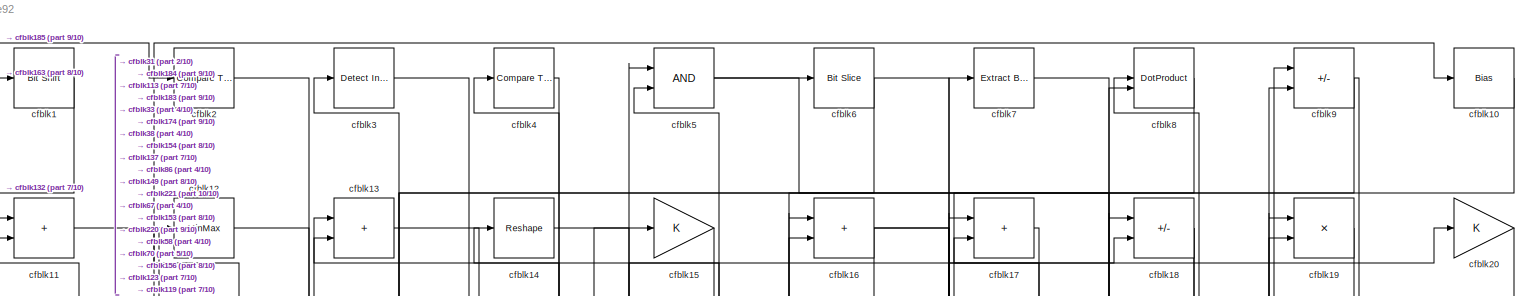
[diagram: root canvas - part 1/10, full width, top band]
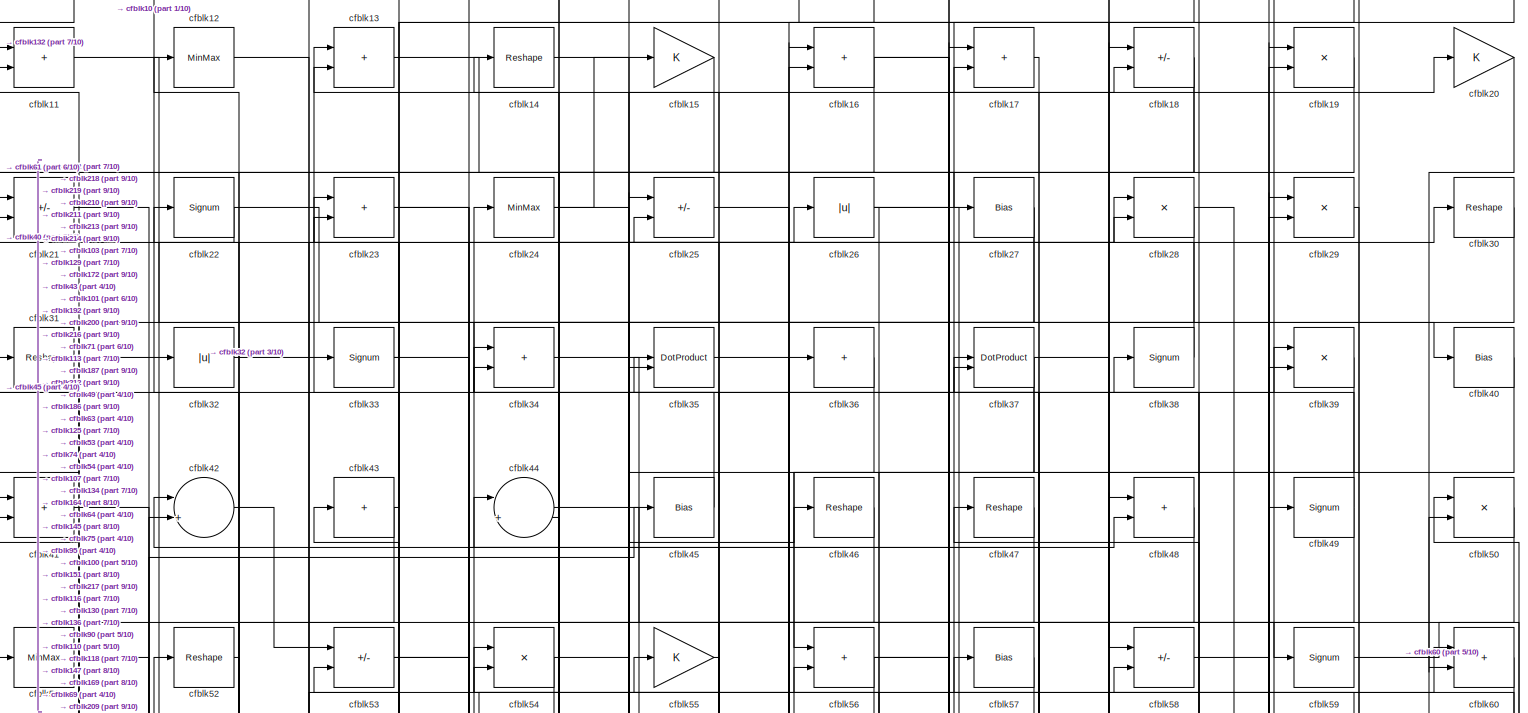
[diagram: root canvas - part 2/10, full width, top band]
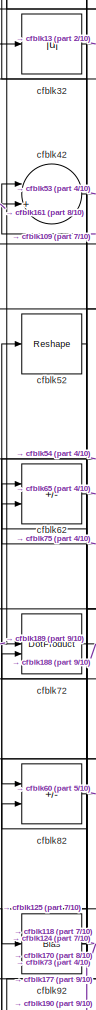
[diagram: root canvas - part 3/10, top left region]
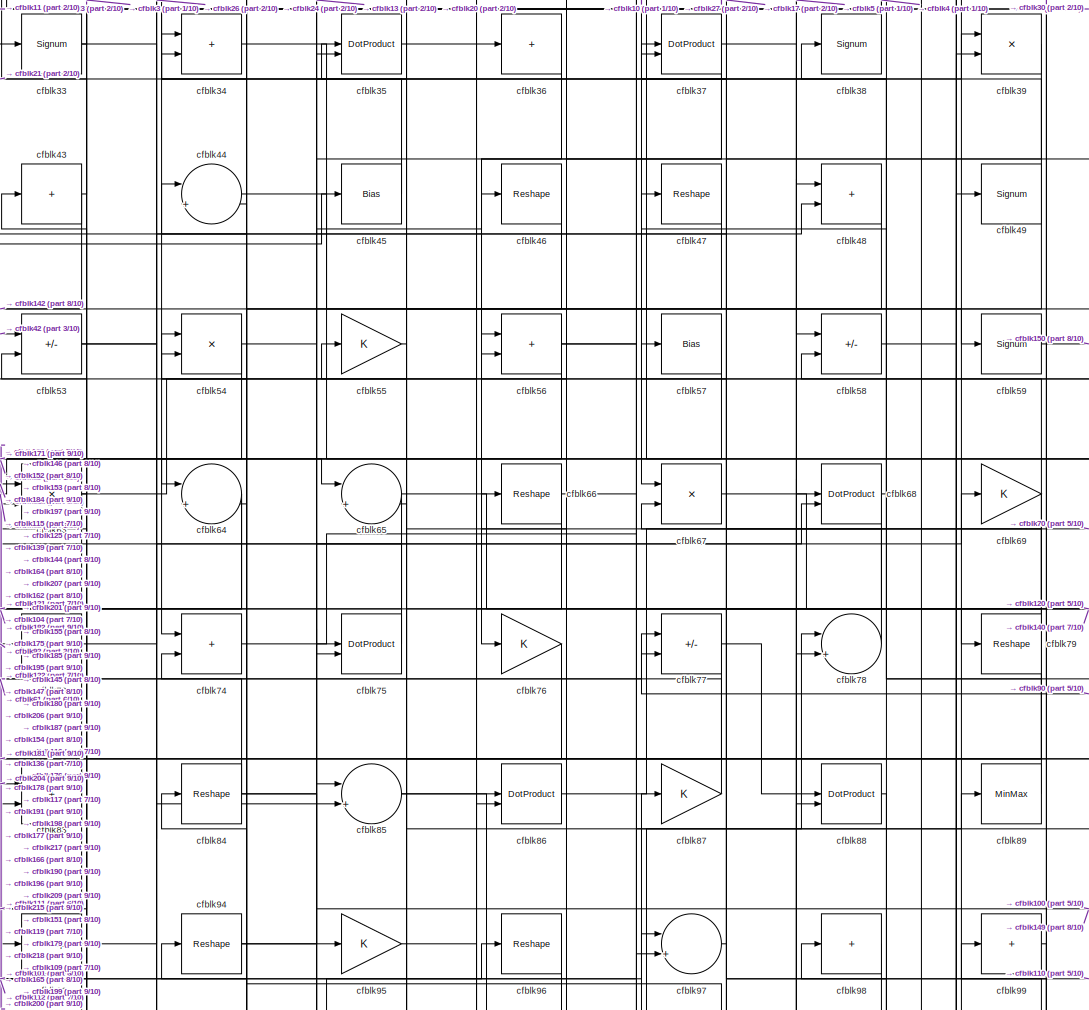
[diagram: root canvas - part 4/10, top center region]
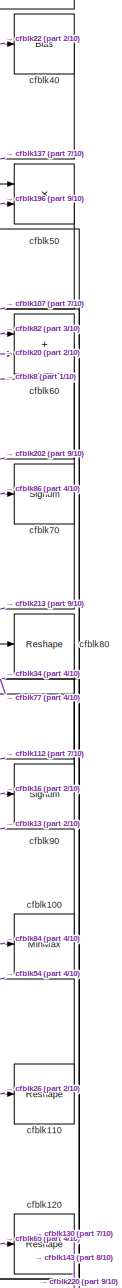
[diagram: root canvas - part 5/10, top right region]
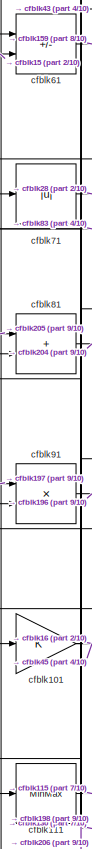
[diagram: root canvas - part 6/10, middle left region]
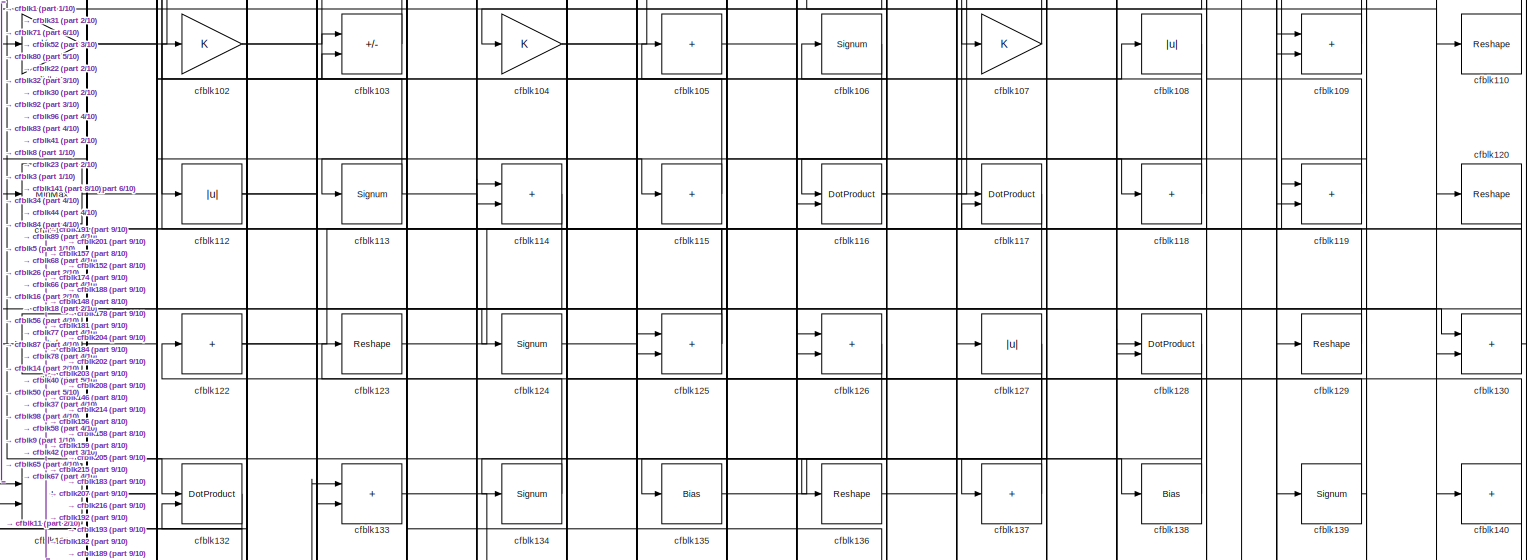
[diagram: root canvas - part 7/10, full width, middle band]
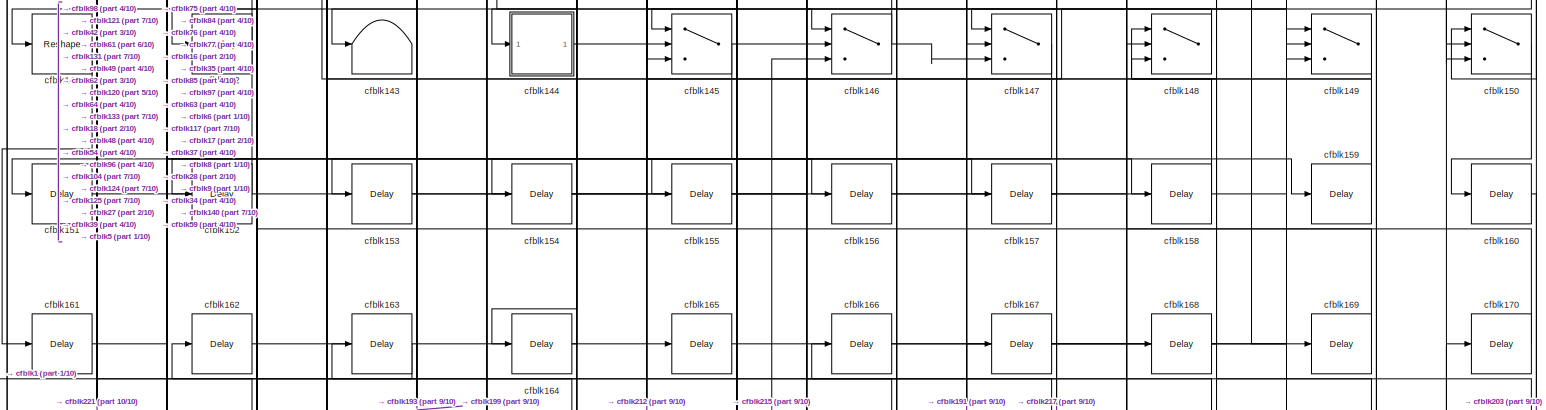
[diagram: root canvas - part 8/10, full width, bottom band]
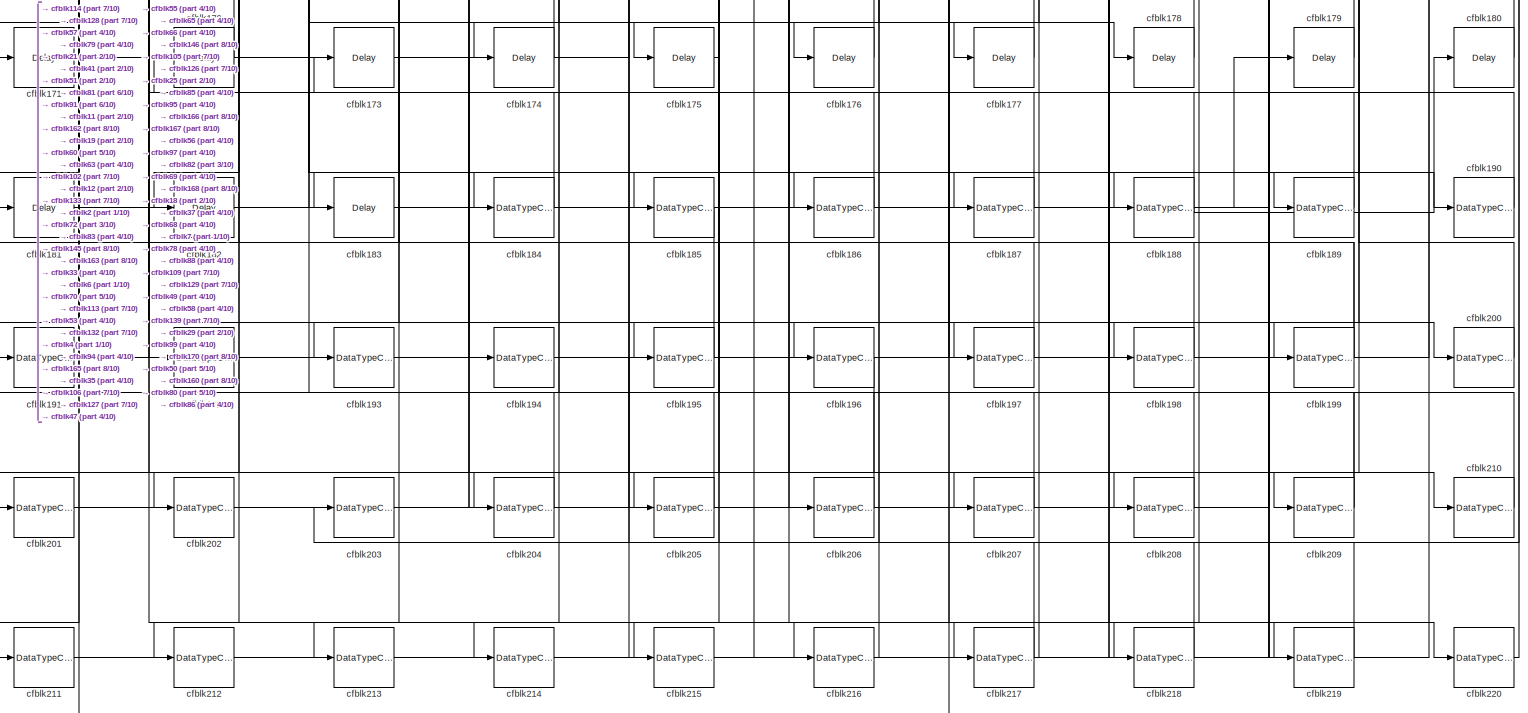
[diagram: root canvas - part 9/10, full width, bottom band]
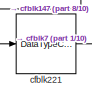
[diagram: root canvas - part 10/10, bottom left region]
MODEL slx_e676f4b62e92
KIND model
CONFIG AbsTol = auto
CONFIG EnableMultiTasking = off
CONFIG FixedStep = auto
CONFIG MaxStep = auto
CONFIG MinStep = auto
CONFIG RelTol = 1e-3
CONFIG SampleTimeConstraint = Unconstrained
CONFIG SolverName = VariableStepAuto
CONFIG StartTime = 0.0
CONFIG StopTime = 10.0
BLOCK [Reference] cfblk1  REF=hdlsllib/Logic and Bit
Operations/Bit Shift
  SourceBlock = hdlsllib/Logic and Bit\nOperations/Bit Shift
  SourceType = Bit Shift
BLOCK [Bias] cfblk10
  Bias = 0.0
  SaturateOnIntegerOverflow = off
BLOCK [MinMax] cfblk100
BLOCK [Gain] cfblk101
BLOCK [Gain] cfblk102
BLOCK [Sum] cfblk103
  IconShape = rectangular
  Inputs = +-
BLOCK [Gain] cfblk104
BLOCK [Sum] cfblk105
  IconShape = rectangular
  Inputs = +
BLOCK [Signum] cfblk106
BLOCK [Gain] cfblk107
BLOCK [Abs] cfblk108
  SaturateOnIntegerOverflow = off
BLOCK [Sum] cfblk109
  IconShape = rectangular
BLOCK [Sum] cfblk11
  IconShape = rectangular
BLOCK [Reshape] cfblk110
BLOCK [MinMax] cfblk111
BLOCK [Abs] cfblk112
  SaturateOnIntegerOverflow = off
BLOCK [Signum] cfblk113
BLOCK [Sum] cfblk114
  IconShape = rectangular
BLOCK [Sum] cfblk115
  IconShape = rectangular
  Inputs = +
BLOCK [DotProduct] cfblk116
  OutDataTypeStr = Inherit: Inherit via internal rule
BLOCK [DotProduct] cfblk117
  OutDataTypeStr = Inherit: Inherit via internal rule
BLOCK [Sum] cfblk118
  IconShape = rectangular
  Inputs = +
BLOCK [Sum] cfblk119
  IconShape = rectangular
BLOCK [MinMax] cfblk12
BLOCK [Reshape] cfblk120
BLOCK [Abs] cfblk121
  SaturateOnIntegerOverflow = off
BLOCK [Sum] cfblk122
  IconShape = rectangular
  Inputs = +
BLOCK [Reshape] cfblk123
BLOCK [Signum] cfblk124
BLOCK [Sum] cfblk125
  IconShape = rectangular
BLOCK [Sum] cfblk126
  IconShape = rectangular
BLOCK [Abs] cfblk127
  SaturateOnIntegerOverflow = off
BLOCK [DotProduct] cfblk128
  OutDataTypeStr = Inherit: Inherit via internal rule
BLOCK [Reshape] cfblk129
BLOCK [Sum] cfblk13
  IconShape = rectangular
BLOCK [Sum] cfblk130
  IconShape = rectangular
BLOCK [Sum] cfblk131
  IconShape = rectangular
BLOCK [DotProduct] cfblk132
  OutDataTypeStr = Inherit: Inherit via internal rule
BLOCK [Sum] cfblk133
  IconShape = rectangular
BLOCK [Signum] cfblk134
BLOCK [Bias] cfblk135
  Bias = 0.0
  SaturateOnIntegerOverflow = off
BLOCK [Reshape] cfblk136
BLOCK [Sum] cfblk137
  IconShape = rectangular
  Inputs = +
BLOCK [Bias] cfblk138
  Bias = 0.0
  SaturateOnIntegerOverflow = off
BLOCK [Signum] cfblk139
BLOCK [Reshape] cfblk14
BLOCK [Sum] cfblk140
  IconShape = rectangular
  Inputs = +
BLOCK [Reshape] cfblk141
BLOCK [ToWorkspace] cfblk142
  MaxDataPoints = inf
  SampleTime = -1
  SaveFormat = Timeseries
  VariableName = simout
BLOCK [Terminator] cfblk143
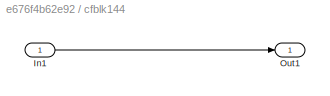
BLOCK [SubSystem] cfblk144
  LibrarySourceBlock = hdlsllib/Ports &\nSubsystems/Subsystem
BLOCK [Inport] cfblk144/In1
BLOCK [Outport] cfblk144/Out1
BLOCK [Switch] cfblk145
  InputSameDT = off
  SaturateOnIntegerOverflow = off
BLOCK [Switch] cfblk146
  InputSameDT = off
  SaturateOnIntegerOverflow = off
BLOCK [Switch] cfblk147
  InputSameDT = off
  SaturateOnIntegerOverflow = off
BLOCK [Switch] cfblk148
  InputSameDT = off
  SaturateOnIntegerOverflow = off
BLOCK [Switch] cfblk149
  InputSameDT = off
  SaturateOnIntegerOverflow = off
BLOCK [Gain] cfblk15
BLOCK [Switch] cfblk150
  InputSameDT = off
  SaturateOnIntegerOverflow = off
BLOCK [Delay] cfblk151
  InputPortMap = u0
  SampleTime = 1
BLOCK [Delay] cfblk152
  InputPortMap = u0
  SampleTime = 1
BLOCK [Delay] cfblk153
  InputPortMap = u0
  SampleTime = 1
BLOCK [Delay] cfblk154
  InputPortMap = u0
  SampleTime = 1
BLOCK [Delay] cfblk155
  InputPortMap = u0
  SampleTime = 1
BLOCK [Delay] cfblk156
  InputPortMap = u0
  SampleTime = 1
BLOCK [Delay] cfblk157
  InputPortMap = u0
  SampleTime = 1
BLOCK [Delay] cfblk158
  InputPortMap = u0
  SampleTime = 1
BLOCK [Delay] cfblk159
  InputPortMap = u0
  SampleTime = 1
BLOCK [Sum] cfblk16
  IconShape = rectangular
BLOCK [Delay] cfblk160
  InputPortMap = u0
  SampleTime = 1
BLOCK [Delay] cfblk161
  InputPortMap = u0
  SampleTime = 1
BLOCK [Delay] cfblk162
  InputPortMap = u0
  SampleTime = 1
BLOCK [Delay] cfblk163
  InputPortMap = u0
  SampleTime = 1
BLOCK [Delay] cfblk164
  InputPortMap = u0
  SampleTime = 1
BLOCK [Delay] cfblk165
  InputPortMap = u0
  SampleTime = 1
BLOCK [Delay] cfblk166
  InputPortMap = u0
  SampleTime = 1
BLOCK [Delay] cfblk167
  InputPortMap = u0
  SampleTime = 1
BLOCK [Delay] cfblk168
  InputPortMap = u0
  SampleTime = 1
BLOCK [Delay] cfblk169
  InputPortMap = u0
  SampleTime = 1
BLOCK [Sum] cfblk17
  IconShape = rectangular
BLOCK [Delay] cfblk170
  InputPortMap = u0
  SampleTime = 1
BLOCK [Delay] cfblk171
  InputPortMap = u0
  SampleTime = 1
BLOCK [Delay] cfblk172
  InputPortMap = u0
  SampleTime = 1
BLOCK [Delay] cfblk173
  InputPortMap = u0
  SampleTime = 1
BLOCK [Delay] cfblk174
  InputPortMap = u0
  SampleTime = 1
BLOCK [Delay] cfblk175
  InputPortMap = u0
  SampleTime = 1
BLOCK [Delay] cfblk176
  InputPortMap = u0
  SampleTime = 1
BLOCK [Delay] cfblk177
  InputPortMap = u0
  SampleTime = 1
BLOCK [Delay] cfblk178
  InputPortMap = u0
  SampleTime = 1
BLOCK [Delay] cfblk179
  InputPortMap = u0
  SampleTime = 1
BLOCK [Sum] cfblk18
  IconShape = rectangular
  Inputs = +-
BLOCK [Delay] cfblk180
  InputPortMap = u0
  SampleTime = 1
BLOCK [Delay] cfblk181
  InputPortMap = u0
  SampleTime = 1
BLOCK [Delay] cfblk182
  InputPortMap = u0
  SampleTime = 1
BLOCK [Delay] cfblk183
  InputPortMap = u0
  SampleTime = 1
BLOCK [DataTypeConversion] cfblk184
  RndMeth = Floor
  SaturateOnIntegerOverflow = off
BLOCK [DataTypeConversion] cfblk185
  OutDataTypeStr = uint8
  RndMeth = Floor
  SaturateOnIntegerOverflow = off
BLOCK [DataTypeConversion] cfblk186
  RndMeth = Floor
  SaturateOnIntegerOverflow = off
BLOCK [DataTypeConversion] cfblk187
  OutDataTypeStr = uint8
  RndMeth = Floor
  SaturateOnIntegerOverflow = off
BLOCK [DataTypeConversion] cfblk188
  RndMeth = Floor
  SaturateOnIntegerOverflow = off
BLOCK [DataTypeConversion] cfblk189
  OutDataTypeStr = uint8
  RndMeth = Floor
  SaturateOnIntegerOverflow = off
BLOCK [Product] cfblk19
  Inputs = */
  RndMeth = Zero
  SaturateOnIntegerOverflow = on
BLOCK [DataTypeConversion] cfblk190
  OutDataTypeStr = uint8
  RndMeth = Floor
  SaturateOnIntegerOverflow = off
BLOCK [DataTypeConversion] cfblk191
  RndMeth = Floor
  SaturateOnIntegerOverflow = off
BLOCK [DataTypeConversion] cfblk192
  OutDataTypeStr = uint8
  RndMeth = Floor
  SaturateOnIntegerOverflow = off
BLOCK [DataTypeConversion] cfblk193
  OutDataTypeStr = uint8
  RndMeth = Floor
  SaturateOnIntegerOverflow = off
BLOCK [DataTypeConversion] cfblk194
  OutDataTypeStr = uint8
  RndMeth = Floor
  SaturateOnIntegerOverflow = off
BLOCK [DataTypeConversion] cfblk195
  OutDataTypeStr = uint8
  RndMeth = Floor
  SaturateOnIntegerOverflow = off
BLOCK [DataTypeConversion] cfblk196
  RndMeth = Floor
  SaturateOnIntegerOverflow = off
BLOCK [DataTypeConversion] cfblk197
  OutDataTypeStr = uint8
  RndMeth = Floor
  SaturateOnIntegerOverflow = off
BLOCK [DataTypeConversion] cfblk198
  OutDataTypeStr = uint8
  RndMeth = Floor
  SaturateOnIntegerOverflow = off
BLOCK [DataTypeConversion] cfblk199
  RndMeth = Floor
  SaturateOnIntegerOverflow = off
BLOCK [Reference] cfblk2  REF=hdlsllib/Logic and Bit
Operations/Compare
To Constant
  SourceBlock = hdlsllib/Logic and Bit\nOperations/Compare\nTo Constant
  SourceType = Compare To Constant
BLOCK [Gain] cfblk20
BLOCK [DataTypeConversion] cfblk200
  OutDataTypeStr = uint8
  RndMeth = Floor
  SaturateOnIntegerOverflow = off
BLOCK [DataTypeConversion] cfblk201
  RndMeth = Floor
  SaturateOnIntegerOverflow = off
BLOCK [DataTypeConversion] cfblk202
  OutDataTypeStr = uint8
  RndMeth = Floor
  SaturateOnIntegerOverflow = off
BLOCK [DataTypeConversion] cfblk203
  OutDataTypeStr = uint8
  RndMeth = Floor
  SaturateOnIntegerOverflow = off
BLOCK [DataTypeConversion] cfblk204
  RndMeth = Floor
  SaturateOnIntegerOverflow = off
BLOCK [DataTypeConversion] cfblk205
  OutDataTypeStr = uint8
  RndMeth = Floor
  SaturateOnIntegerOverflow = off
BLOCK [DataTypeConversion] cfblk206
  OutDataTypeStr = uint8
  RndMeth = Floor
  SaturateOnIntegerOverflow = off
BLOCK [DataTypeConversion] cfblk207
  OutDataTypeStr = uint8
  RndMeth = Floor
  SaturateOnIntegerOverflow = off
BLOCK [DataTypeConversion] cfblk208
  OutDataTypeStr = uint8
  RndMeth = Floor
  SaturateOnIntegerOverflow = off
BLOCK [DataTypeConversion] cfblk209
  RndMeth = Floor
  SaturateOnIntegerOverflow = off
BLOCK [Sum] cfblk21
  IconShape = rectangular
  Inputs = +-
BLOCK [DataTypeConversion] cfblk210
  OutDataTypeStr = uint8
  RndMeth = Floor
  SaturateOnIntegerOverflow = off
BLOCK [DataTypeConversion] cfblk211
  OutDataTypeStr = uint8
  RndMeth = Floor
  SaturateOnIntegerOverflow = off
BLOCK [DataTypeConversion] cfblk212
  RndMeth = Floor
  SaturateOnIntegerOverflow = off
BLOCK [DataTypeConversion] cfblk213
  OutDataTypeStr = uint8
  RndMeth = Floor
  SaturateOnIntegerOverflow = off
BLOCK [DataTypeConversion] cfblk214
  OutDataTypeStr = uint8
  RndMeth = Floor
  SaturateOnIntegerOverflow = off
BLOCK [DataTypeConversion] cfblk215
  RndMeth = Floor
  SaturateOnIntegerOverflow = off
BLOCK [DataTypeConversion] cfblk216
  OutDataTypeStr = uint8
  RndMeth = Floor
  SaturateOnIntegerOverflow = off
BLOCK [DataTypeConversion] cfblk217
  RndMeth = Floor
  SaturateOnIntegerOverflow = off
BLOCK [DataTypeConversion] cfblk218
  OutDataTypeStr = uint8
  RndMeth = Floor
  SaturateOnIntegerOverflow = off
BLOCK [DataTypeConversion] cfblk219
  OutDataTypeStr = uint8
  RndMeth = Floor
  SaturateOnIntegerOverflow = off
BLOCK [Signum] cfblk22
BLOCK [DataTypeConversion] cfblk220
  OutDataTypeStr = uint8
  RndMeth = Floor
  SaturateOnIntegerOverflow = off
BLOCK [DataTypeConversion] cfblk221
  OutDataTypeStr = uint8
  RndMeth = Floor
  SaturateOnIntegerOverflow = off
BLOCK [Sum] cfblk23
  IconShape = rectangular
BLOCK [MinMax] cfblk24
BLOCK [Sum] cfblk25
  IconShape = rectangular
  Inputs = +-
BLOCK [Abs] cfblk26
  SaturateOnIntegerOverflow = off
BLOCK [Bias] cfblk27
  Bias = 0.0
  SaturateOnIntegerOverflow = off
BLOCK [Product] cfblk28
  Inputs = */
  RndMeth = Zero
  SaturateOnIntegerOverflow = on
BLOCK [Product] cfblk29
  Inputs = */
  RndMeth = Zero
  SaturateOnIntegerOverflow = on
BLOCK [Reference] cfblk3  REF=simulink/Logic and Bit
Operations/Detect
Increase
  LibrarySourceBlock = hdlsllib/Logic and Bit\nOperations/Detect\nIncrease
  SourceBlock = simulink/Logic and Bit\nOperations/Detect\nIncrease
  SourceType = Detect Increase
BLOCK [Reshape] cfblk30
BLOCK [Reshape] cfblk31
BLOCK [Abs] cfblk32
  SaturateOnIntegerOverflow = off
BLOCK [Signum] cfblk33
BLOCK [Sum] cfblk34
  IconShape = rectangular
BLOCK [DotProduct] cfblk35
  OutDataTypeStr = Inherit: Inherit via internal rule
BLOCK [Sum] cfblk36
  IconShape = rectangular
  Inputs = +
BLOCK [DotProduct] cfblk37
  OutDataTypeStr = Inherit: Inherit via internal rule
BLOCK [Signum] cfblk38
BLOCK [Product] cfblk39
  Inputs = */
  RndMeth = Zero
  SaturateOnIntegerOverflow = on
BLOCK [Reference] cfblk4  REF=hdlsllib/Logic and Bit
Operations/Compare
To Constant
  SourceBlock = hdlsllib/Logic and Bit\nOperations/Compare\nTo Constant
  SourceType = Compare To Constant
BLOCK [Bias] cfblk40
  Bias = 0.0
  SaturateOnIntegerOverflow = off
BLOCK [Sum] cfblk41
  IconShape = rectangular
BLOCK [Sum] cfblk42
  Inputs = |++
BLOCK [Sum] cfblk43
  IconShape = rectangular
  Inputs = +
BLOCK [Sum] cfblk44
  Inputs = |++
BLOCK [Bias] cfblk45
  Bias = 0.0
  SaturateOnIntegerOverflow = off
BLOCK [Reshape] cfblk46
BLOCK [Reshape] cfblk47
BLOCK [Sum] cfblk48
  IconShape = rectangular
BLOCK [Signum] cfblk49
BLOCK [Logic] cfblk5
  AllPortsSameDT = off
  OutDataTypeStr = boolean
BLOCK [Product] cfblk50
  Inputs = */
  RndMeth = Zero
  SaturateOnIntegerOverflow = on
BLOCK [MinMax] cfblk51
BLOCK [Reshape] cfblk52
BLOCK [Sum] cfblk53
  IconShape = rectangular
  Inputs = +-
BLOCK [Product] cfblk54
  Inputs = */
  RndMeth = Zero
  SaturateOnIntegerOverflow = on
BLOCK [Gain] cfblk55
BLOCK [Sum] cfblk56
  IconShape = rectangular
BLOCK [Bias] cfblk57
  Bias = 0.0
  SaturateOnIntegerOverflow = off
BLOCK [Sum] cfblk58
  IconShape = rectangular
  Inputs = +-
BLOCK [Signum] cfblk59
BLOCK [Reference] cfblk6  REF=hdlsllib/Logic and Bit
Operations/Bit Slice
  SourceBlock = hdlsllib/Logic and Bit\nOperations/Bit Slice
  SourceType = Bit Slice
BLOCK [Sum] cfblk60
  IconShape = rectangular
BLOCK [Sum] cfblk61
  IconShape = rectangular
  Inputs = +-
BLOCK [Sum] cfblk62
  IconShape = rectangular
  Inputs = +-
BLOCK [Product] cfblk63
  Inputs = */
  RndMeth = Zero
  SaturateOnIntegerOverflow = on
BLOCK [Sum] cfblk64
  Inputs = |++
BLOCK [Sum] cfblk65
  Inputs = |++
BLOCK [Reshape] cfblk66
BLOCK [Product] cfblk67
  Inputs = */
  RndMeth = Zero
  SaturateOnIntegerOverflow = on
BLOCK [DotProduct] cfblk68
  OutDataTypeStr = Inherit: Inherit via internal rule
BLOCK [Gain] cfblk69
BLOCK [Reference] cfblk7  REF=simulink/Logic and Bit
Operations/Extract Bits
  LibrarySourceBlock = hdlsllib/Logic and Bit\nOperations/Extract Bits
  SourceBlock = simulink/Logic and Bit\nOperations/Extract Bits
  SourceType = Extract Bits
BLOCK [Signum] cfblk70
BLOCK [Abs] cfblk71
  SaturateOnIntegerOverflow = off
BLOCK [DotProduct] cfblk72
  OutDataTypeStr = Inherit: Inherit via internal rule
BLOCK [Bias] cfblk73
  Bias = 0.0
  SaturateOnIntegerOverflow = off
BLOCK [Sum] cfblk74
  IconShape = rectangular
BLOCK [DotProduct] cfblk75
  OutDataTypeStr = Inherit: Inherit via internal rule
BLOCK [Gain] cfblk76
BLOCK [Sum] cfblk77
  IconShape = rectangular
  Inputs = +-
BLOCK [Sum] cfblk78
  Inputs = |++
BLOCK [Reshape] cfblk79
BLOCK [DotProduct] cfblk8
  OutDataTypeStr = Inherit: Inherit via internal rule
BLOCK [Reshape] cfblk80
BLOCK [Sum] cfblk81
  IconShape = rectangular
BLOCK [Sum] cfblk82
  IconShape = rectangular
  Inputs = +-
BLOCK [Sum] cfblk83
  IconShape = rectangular
BLOCK [Reshape] cfblk84
BLOCK [Sum] cfblk85
  Inputs = |++
BLOCK [DotProduct] cfblk86
  OutDataTypeStr = Inherit: Inherit via internal rule
BLOCK [Gain] cfblk87
BLOCK [DotProduct] cfblk88
  OutDataTypeStr = Inherit: Inherit via internal rule
BLOCK [MinMax] cfblk89
BLOCK [Sum] cfblk9
  IconShape = rectangular
  Inputs = +-
BLOCK [Signum] cfblk90
BLOCK [Product] cfblk91
  Inputs = */
  RndMeth = Zero
  SaturateOnIntegerOverflow = on
BLOCK [Bias] cfblk92
  Bias = 0.0
  SaturateOnIntegerOverflow = off
BLOCK [Reshape] cfblk93
BLOCK [Reshape] cfblk94
BLOCK [Gain] cfblk95
BLOCK [Reshape] cfblk96
BLOCK [Sum] cfblk97
  Inputs = |++
BLOCK [Sum] cfblk98
  IconShape = rectangular
  Inputs = +
BLOCK [Sum] cfblk99
  IconShape = rectangular
  Inputs = +
LINE cfblk100:1 -> cfblk13:2
NET cfblk101:1 -> cfblk16:1, cfblk45:1
NET cfblk102:1 -> cfblk178:1, cfblk83:2
LINE cfblk103:1 -> cfblk41:2
NET cfblk104:1 -> cfblk158:1, cfblk89:1
LINE cfblk105:1 -> cfblk207:1
LINE cfblk106:1 -> cfblk215:1
LINE cfblk107:1 -> cfblk14:1
LINE cfblk108:1 -> cfblk126:2
LINE cfblk109:1 -> cfblk42:1
LINE cfblk10:1 -> cfblk67:1
LINE cfblk110:1 -> cfblk54:1
LINE cfblk111:1 -> cfblk115:1
NET cfblk112:1 -> cfblk30:1, cfblk96:1
NET cfblk113:1 -> cfblk208:1, cfblk22:1
LINE cfblk114:1 -> cfblk201:1
LINE cfblk115:1 -> cfblk34:1
NET cfblk116:1 -> cfblk66:1, cfblk78:1
LINE cfblk117:1 -> cfblk121:1
LINE cfblk118:1 -> cfblk32:1
LINE cfblk119:1 -> cfblk98:1
LINE cfblk11:1 -> cfblk75:2
LINE cfblk120:1 -> cfblk143:1
LINE cfblk121:1 -> cfblk157:1
NET cfblk122:1 -> cfblk77:1, cfblk87:1
LINE cfblk123:1 -> cfblk9:1
LINE cfblk124:1 -> cfblk156:1
NET cfblk125:1 -> cfblk44:2, cfblk52:1
LINE cfblk126:1 -> cfblk135:1
NET cfblk127:1 -> cfblk205:1, cfblk214:1
LINE cfblk128:1 -> cfblk191:1
LINE cfblk129:1 -> cfblk31:1
LINE cfblk12:1 -> cfblk186:1
NET cfblk130:1 -> cfblk103:1, cfblk50:1, cfblk71:1
NET cfblk131:1 -> cfblk103:2, cfblk108:1
LINE cfblk132:1 -> cfblk11:1
LINE cfblk133:1 -> cfblk146:1
LINE cfblk134:1 -> cfblk123:1
LINE cfblk135:1 -> cfblk138:1
LINE cfblk136:1 -> cfblk18:2
LINE cfblk137:1 -> cfblk5:2
LINE cfblk138:1 -> cfblk122:1
NET cfblk139:1 -> cfblk189:1, cfblk84:1
LINE cfblk13:1 -> cfblk95:1
NET cfblk140:1 -> cfblk141:1, cfblk44:1
LINE cfblk141:1 -> cfblk161:1
LINE cfblk144/In1:1 -> cfblk144/Out1:1
LINE cfblk144:1 -> cfblk39:1
NET cfblk145:1 -> cfblk193:1, cfblk97:1
NET cfblk146:1 -> cfblk147:3, cfblk63:2
LINE cfblk147:1 -> cfblk221:1
LINE cfblk148:1 -> cfblk133:1
LINE cfblk149:1 -> cfblk148:1
LINE cfblk14:1 -> cfblk27:1
LINE cfblk150:1 -> cfblk160:1
LINE cfblk151:1 -> cfblk16:2
LINE cfblk152:1 -> cfblk131:1
LINE cfblk153:1 -> cfblk8:2
LINE cfblk154:1 -> cfblk5:1
LINE cfblk155:1 -> cfblk146:2
LINE cfblk156:1 -> cfblk9:2
LINE cfblk157:1 -> cfblk117:2
LINE cfblk158:1 -> cfblk63:1
LINE cfblk159:1 -> cfblk125:1
LINE cfblk15:1 -> cfblk61:2
LINE cfblk160:1 -> cfblk203:1
LINE cfblk161:1 -> cfblk42:2
LINE cfblk162:1 -> cfblk75:1
LINE cfblk163:1 -> cfblk1:1
LINE cfblk164:1 -> cfblk54:2
LINE cfblk165:1 -> cfblk39:2
LINE cfblk166:1 -> cfblk48:1
LINE cfblk167:1 -> cfblk149:1
LINE cfblk168:1 -> cfblk148:3
LINE cfblk169:1 -> cfblk148:2
NET cfblk16:1 -> cfblk130:1, cfblk134:1, cfblk90:1
LINE cfblk170:1 -> cfblk62:2
LINE cfblk171:1 -> cfblk85:1
LINE cfblk172:1 -> cfblk11:2
LINE cfblk173:1 -> cfblk194:1
LINE cfblk174:1 -> cfblk132:2
LINE cfblk175:1 -> cfblk65:2
LINE cfblk176:1 -> cfblk53:2
LINE cfblk177:1 -> cfblk82:2
LINE cfblk178:1 -> cfblk56:2
LINE cfblk179:1 -> cfblk58:2
LINE cfblk17:1 -> cfblk147:1
LINE cfblk180:1 -> cfblk86:1
LINE cfblk181:1 -> cfblk133:2
LINE cfblk182:1 -> cfblk109:2
LINE cfblk183:1 -> cfblk126:1
NET cfblk184:1 -> cfblk127:1, cfblk33:1
LINE cfblk185:1 -> cfblk2:1
NET cfblk186:1 -> cfblk172:1, cfblk219:1
LINE cfblk187:1 -> cfblk12:1
NET cfblk188:1 -> cfblk102:1, cfblk179:1, cfblk180:1
LINE cfblk189:1 -> cfblk72:1
NET cfblk18:1 -> cfblk164:1, cfblk51:1
LINE cfblk190:1 -> cfblk72:2
NET cfblk191:1 -> cfblk167:1, cfblk168:1, cfblk97:2
LINE cfblk192:1 -> cfblk128:1
LINE cfblk193:1 -> cfblk128:2
LINE cfblk194:1 -> cfblk210:1
LINE cfblk195:1 -> cfblk173:1
NET cfblk196:1 -> cfblk211:1, cfblk50:2, cfblk78:2
LINE cfblk197:1 -> cfblk91:1
LINE cfblk198:1 -> cfblk91:2
NET cfblk199:1 -> cfblk162:1, cfblk163:1
LINE cfblk19:1 -> cfblk212:1
LINE cfblk1:1 -> cfblk132:1
LINE cfblk200:1 -> cfblk99:1
NET cfblk201:1 -> cfblk139:1, cfblk35:2
LINE cfblk202:1 -> cfblk114:1
LINE cfblk203:1 -> cfblk114:2
NET cfblk204:1 -> cfblk129:1, cfblk83:1
LINE cfblk205:1 -> cfblk81:1
LINE cfblk206:1 -> cfblk81:2
LINE cfblk207:1 -> cfblk94:1
LINE cfblk208:1 -> cfblk105:1
NET cfblk209:1 -> cfblk55:1, cfblk68:1
LINE cfblk20:1 -> cfblk60:2
LINE cfblk210:1 -> cfblk29:1
LINE cfblk211:1 -> cfblk29:2
NET cfblk212:1 -> cfblk165:1, cfblk18:1
LINE cfblk213:1 -> cfblk19:1
LINE cfblk214:1 -> cfblk19:2
NET cfblk215:1 -> cfblk146:3, cfblk88:2
LINE cfblk216:1 -> cfblk106:1
NET cfblk217:1 -> cfblk166:1, cfblk170:1, cfblk49:1, cfblk57:1
LINE cfblk218:1 -> cfblk25:1
LINE cfblk219:1 -> cfblk25:2
LINE cfblk21:1 -> cfblk216:1
LINE cfblk220:1 -> cfblk80:1
LINE cfblk221:1 -> cfblk7:1
NET cfblk22:1 -> cfblk21:2, cfblk40:1
NET cfblk23:1 -> cfblk125:2, cfblk130:2
NET cfblk24:1 -> cfblk15:1, cfblk28:2
LINE cfblk25:1 -> cfblk217:1
NET cfblk26:1 -> cfblk110:1, cfblk116:1, cfblk118:1
NET cfblk27:1 -> cfblk145:3, cfblk74:1
NET cfblk28:1 -> cfblk169:1, cfblk41:1
LINE cfblk29:1 -> cfblk209:1
LINE cfblk2:1 -> cfblk184:1
LINE cfblk30:1 -> cfblk64:1
LINE cfblk31:1 -> cfblk10:1
LINE cfblk32:1 -> cfblk13:1
NET cfblk33:1 -> cfblk3:1, cfblk85:2
LINE cfblk34:1 -> cfblk150:2
LINE cfblk35:1 -> cfblk147:2
LINE cfblk36:1 -> cfblk76:1
NET cfblk37:1 -> cfblk136:1, cfblk145:2, cfblk190:1
LINE cfblk38:1 -> cfblk4:1
LINE cfblk39:1 -> cfblk56:1
LINE cfblk3:1 -> cfblk119:2
LINE cfblk40:1 -> cfblk137:1
LINE cfblk41:1 -> cfblk192:1
LINE cfblk42:1 -> cfblk53:1
NET cfblk43:1 -> cfblk101:1, cfblk23:2
LINE cfblk44:1 -> cfblk59:1
LINE cfblk45:1 -> cfblk21:1
LINE cfblk46:1 -> cfblk64:2
LINE cfblk47:1 -> cfblk185:1
LINE cfblk48:1 -> cfblk144:1
NET cfblk49:1 -> cfblk142:1, cfblk24:1
LINE cfblk4:1 -> cfblk174:1
LINE cfblk50:1 -> cfblk107:1
LINE cfblk51:1 -> cfblk200:1
LINE cfblk52:1 -> cfblk92:1
NET cfblk53:1 -> cfblk197:1, cfblk26:1
NET cfblk54:1 -> cfblk20:1, cfblk82:1
LINE cfblk55:1 -> cfblk195:1
NET cfblk56:1 -> cfblk104:1, cfblk117:1, cfblk198:1
LINE cfblk57:1 -> cfblk171:1
LINE cfblk58:1 -> cfblk109:1
LINE cfblk59:1 -> cfblk150:1
NET cfblk5:1 -> cfblk58:1, cfblk6:1
LINE cfblk60:1 -> cfblk202:1
LINE cfblk61:1 -> cfblk159:1
LINE cfblk62:1 -> cfblk65:1
NET cfblk63:1 -> cfblk182:1, cfblk23:1, cfblk36:1
NET cfblk64:1 -> cfblk152:1, cfblk153:1
NET cfblk65:1 -> cfblk120:1, cfblk131:2
NET cfblk66:1 -> cfblk175:1, cfblk79:1
LINE cfblk67:1 -> cfblk140:1
NET cfblk68:1 -> cfblk116:2, cfblk38:1
NET cfblk69:1 -> cfblk176:1, cfblk177:1, cfblk17:2
NET cfblk6:1 -> cfblk149:3, cfblk183:1
NET cfblk70:1 -> cfblk213:1, cfblk8:1
LINE cfblk71:1 -> cfblk28:1
LINE cfblk72:1 -> cfblk188:1
LINE cfblk73:1 -> cfblk48:2
LINE cfblk74:1 -> cfblk17:1
LINE cfblk75:1 -> cfblk62:1
LINE cfblk76:1 -> cfblk155:1
NET cfblk77:1 -> cfblk145:1, cfblk88:1
LINE cfblk78:1 -> cfblk35:1
NET cfblk79:1 -> cfblk181:1, cfblk37:1, cfblk37:2, cfblk93:1
LINE cfblk7:1 -> cfblk220:1
LINE cfblk80:1 -> cfblk112:1
LINE cfblk81:1 -> cfblk204:1
LINE cfblk82:1 -> cfblk60:1
NET cfblk83:1 -> cfblk111:1, cfblk61:1
NET cfblk84:1 -> cfblk100:1, cfblk149:2, cfblk74:2
NET cfblk85:1 -> cfblk150:3, cfblk187:1
LINE cfblk86:1 -> cfblk70:1
LINE cfblk87:1 -> cfblk43:1
LINE cfblk88:1 -> cfblk218:1
LINE cfblk89:1 -> cfblk47:1
LINE cfblk8:1 -> cfblk113:1
NET cfblk90:1 -> cfblk34:2, cfblk77:2
LINE cfblk91:1 -> cfblk196:1
NET cfblk92:1 -> cfblk124:1, cfblk73:1
LINE cfblk93:1 -> cfblk69:1
NET cfblk94:1 -> cfblk46:1, cfblk68:2
LINE cfblk95:1 -> cfblk206:1
LINE cfblk96:1 -> cfblk154:1
LINE cfblk97:1 -> cfblk67:2
LINE cfblk98:1 -> cfblk151:1
LINE cfblk99:1 -> cfblk199:1
NET cfblk9:1 -> cfblk119:1, cfblk86:2
note: NET lines group one-source signal fan-out (src -> all destinations, sorted); 1:1 wires keep LINE
